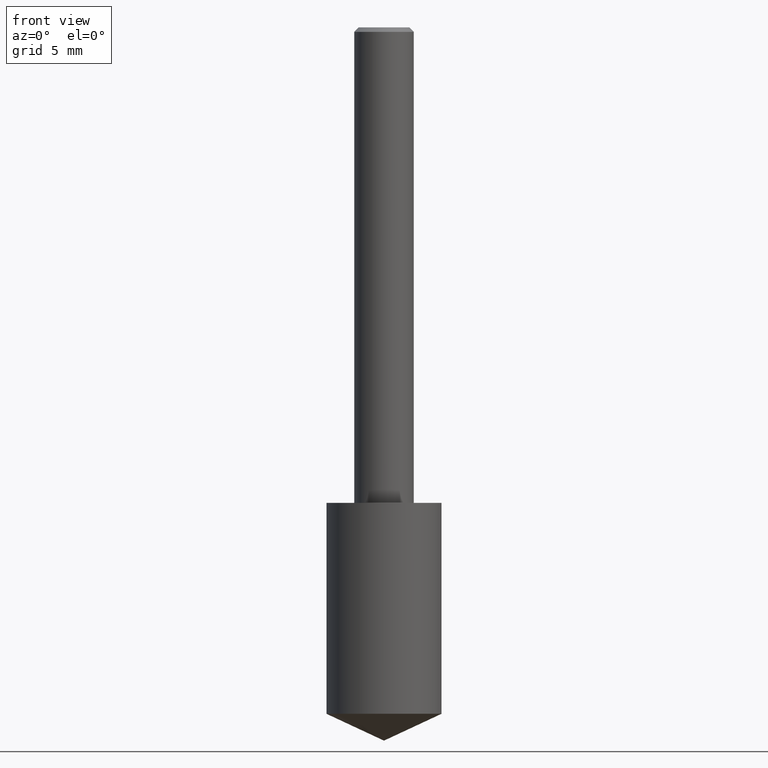
[diagram: clean part render]
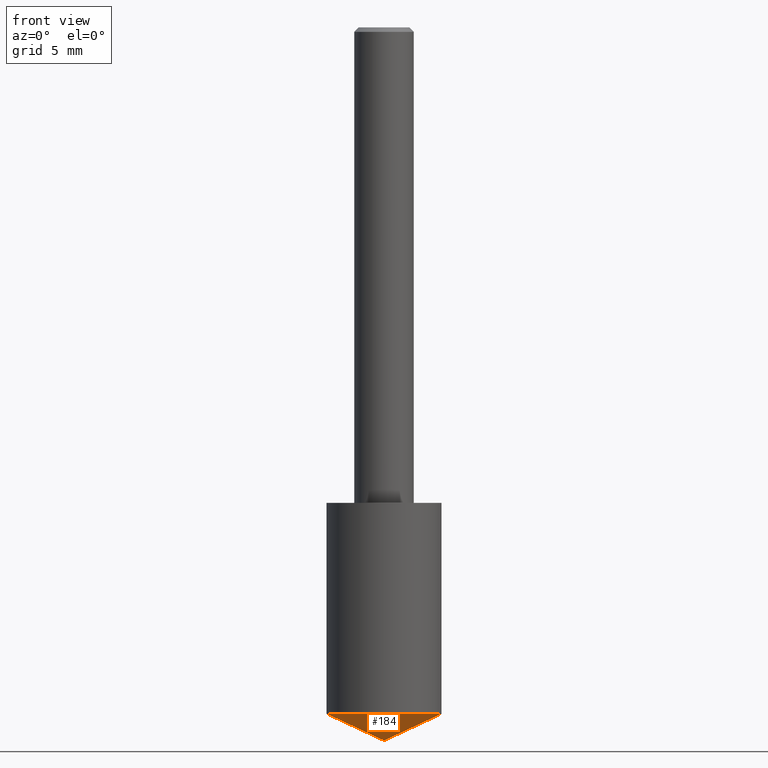
[diagram: same view with one face highlighted and labeled with its STEP entity id]
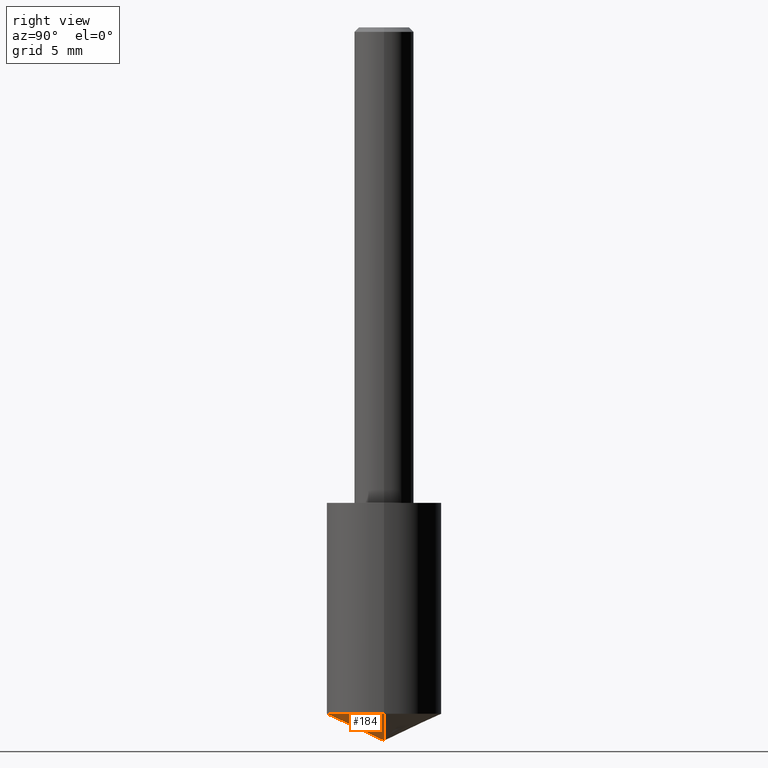
[diagram: same view with one face highlighted and labeled with its STEP entity id]
A machine part, front view. The second image highlights one B-rep face of the part: STEP entity #184.
A second angle (right view) of the same face is appended — the face is thin or edge-on in the first view.
In plain terms, the highlighted conical surface has half-angle 65 deg.
Its self-contained STEP definition (entity closure, byte-faithful):
#18 = DIRECTION ( 'NONE',  ( 0.9063077870366508249, -4.853149677051392201E-15, 0.4226182617406975539 ) ) ;
#23 = VERTEX_POINT ( 'NONE', #28 ) ;
#27 = EDGE_CURVE ( 'NONE', #124, #329, #126, .T. ) ;
#28 = CARTESIAN_POINT ( 'NONE',  ( 0.1210000000000000103, -5.885159849385211106E-15, -1.443576773363245636 ) ) ;
#41 = ORIENTED_EDGE ( 'NONE', *, *, #27, .F. ) ;
#50 = EDGE_CURVE ( 'NONE', #124, #23, #290, .T. ) ;
#66 = DIRECTION ( 'NONE',  ( -2.445468806185136597E-29, 3.491481338843145583E-15, 1.000000000000000000 ) ) ;
#81 = DIRECTION ( 'NONE',  ( 1.000000000000000000, -6.982962677686266711E-15, 0.000000000000000000 ) ) ;
#83 = AXIS2_PLACEMENT_3D ( 'NONE', #123, #289, #136 ) ;
#84 = CIRCLE ( 'NONE', #83, 0.1210000000000000103 ) ;
#100 = AXIS2_PLACEMENT_3D ( 'NONE', #246, #66, #81 ) ;
#101 = CARTESIAN_POINT ( 'NONE',  ( -0.1210000000000000103, -4.180464655115451414E-15, -1.443576773363245636 ) ) ;
#114 = CARTESIAN_POINT ( 'NONE',  ( 3.668203209277704895E-29, -5.237222008264718177E-15, -1.500000000000000222 ) ) ;
#116 = FACE_OUTER_BOUND ( 'NONE', #304, .T. ) ;
#123 = CARTESIAN_POINT ( 'NONE',  ( 3.530221968593207660E-29, -5.040221365385172613E-15, -1.443576773363245636 ) ) ;
#124 = VERTEX_POINT ( 'NONE', #114 ) ;
#126 = LINE ( 'NONE', #286, #201 ) ;
#130 = VECTOR ( 'NONE', #18, 39.37007874015748143 ) ;
#136 = DIRECTION ( 'NONE',  ( 1.000000000000000000, -6.982962677686268288E-15, 0.000000000000000000 ) ) ;
#148 = CARTESIAN_POINT ( 'NONE',  ( 3.668203209277704895E-29, -5.237222008264718177E-15, -1.500000000000000222 ) ) ;
#184 = ADVANCED_FACE ( 'NONE', ( #116 ), #303, .T. ) ;
#201 = VECTOR ( 'NONE', #236, 39.37007874015748143 ) ;
#228 = ORIENTED_EDGE ( 'NONE', *, *, #267, .F. ) ;
#236 = DIRECTION ( 'NONE',  ( -0.9063077870366508249, 7.915267918739014631E-15, 0.4226182617406975539 ) ) ;
#246 = CARTESIAN_POINT ( 'NONE',  ( -9.261009624683002666E-28, 1.322226732217803884E-13, 37.87007874015748143 ) ) ;
#267 = EDGE_CURVE ( 'NONE', #329, #23, #84, .T. ) ;
#286 = CARTESIAN_POINT ( 'NONE',  ( 3.668203209277704895E-29, -5.237222008264718177E-15, -1.500000000000000222 ) ) ;
#289 = DIRECTION ( 'NONE',  ( -2.445468806185136597E-29, 3.491481338843145583E-15, 1.000000000000000000 ) ) ;
#290 = LINE ( 'NONE', #148, #130 ) ;
#303 = CONICAL_SURFACE ( 'NONE', #100, 84.42940631927440620, 1.134464013796316229 ) ;
#304 = EDGE_LOOP ( 'NONE', ( #41, #321, #228 ) ) ;
#321 = ORIENTED_EDGE ( 'NONE', *, *, #50, .T. ) ;
#329 = VERTEX_POINT ( 'NONE', #101 ) ;